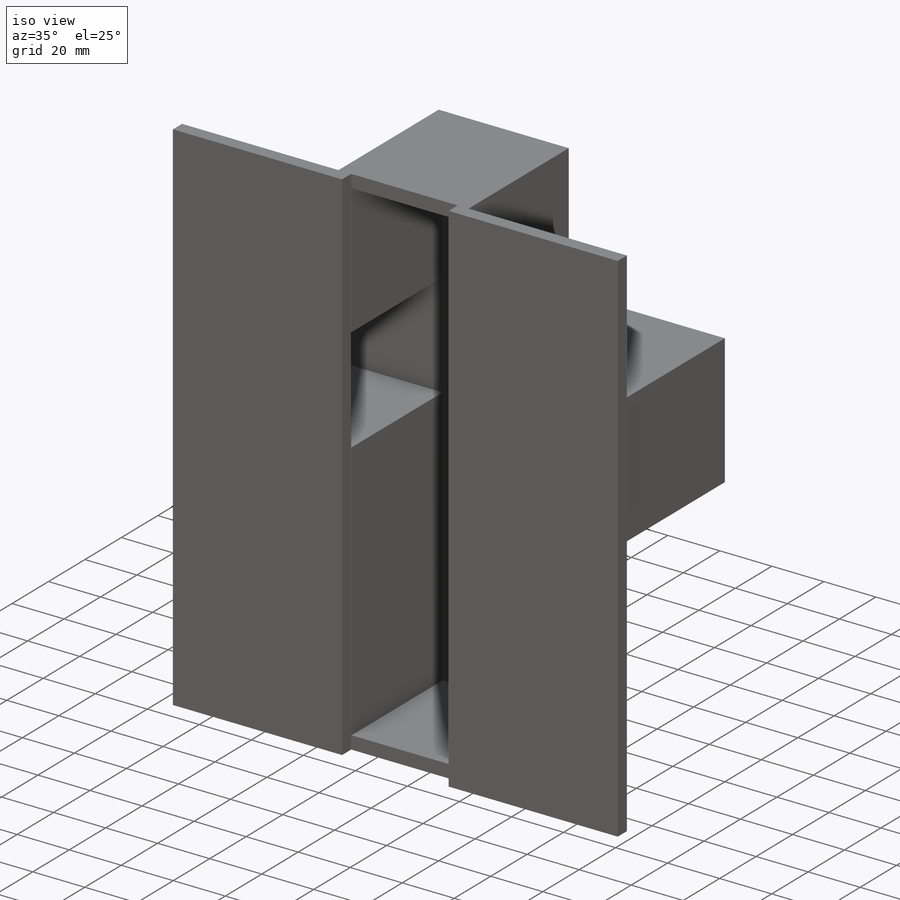
[diagram: iso view]
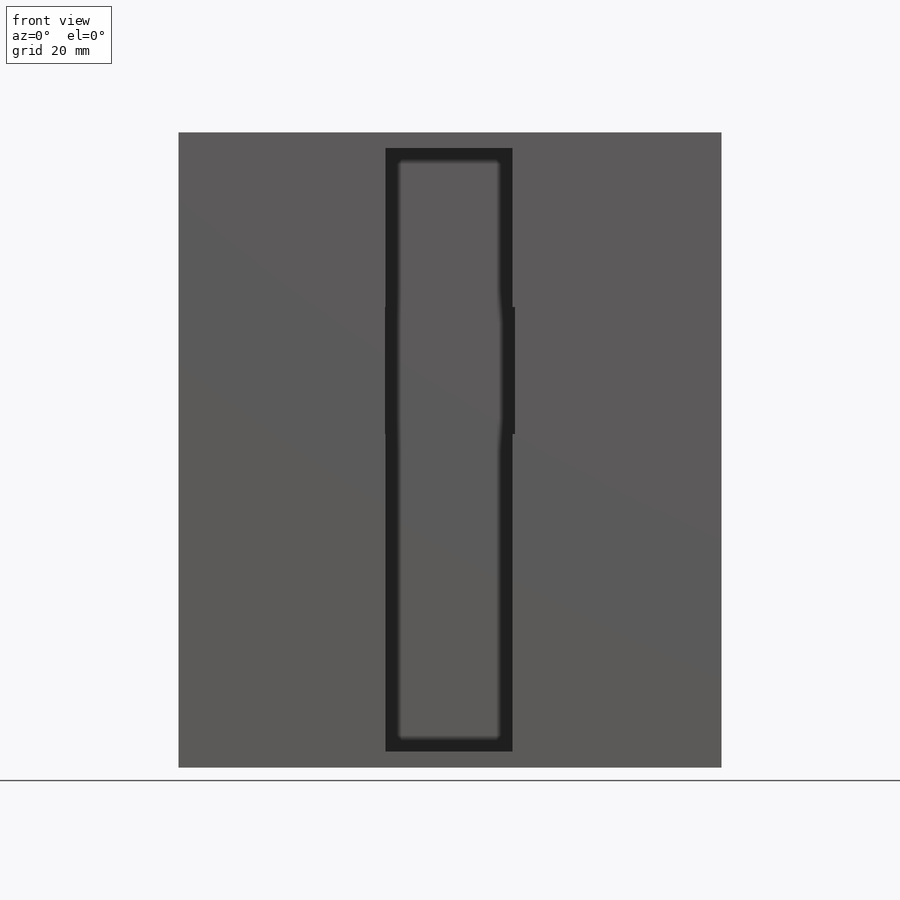
[diagram: front view]
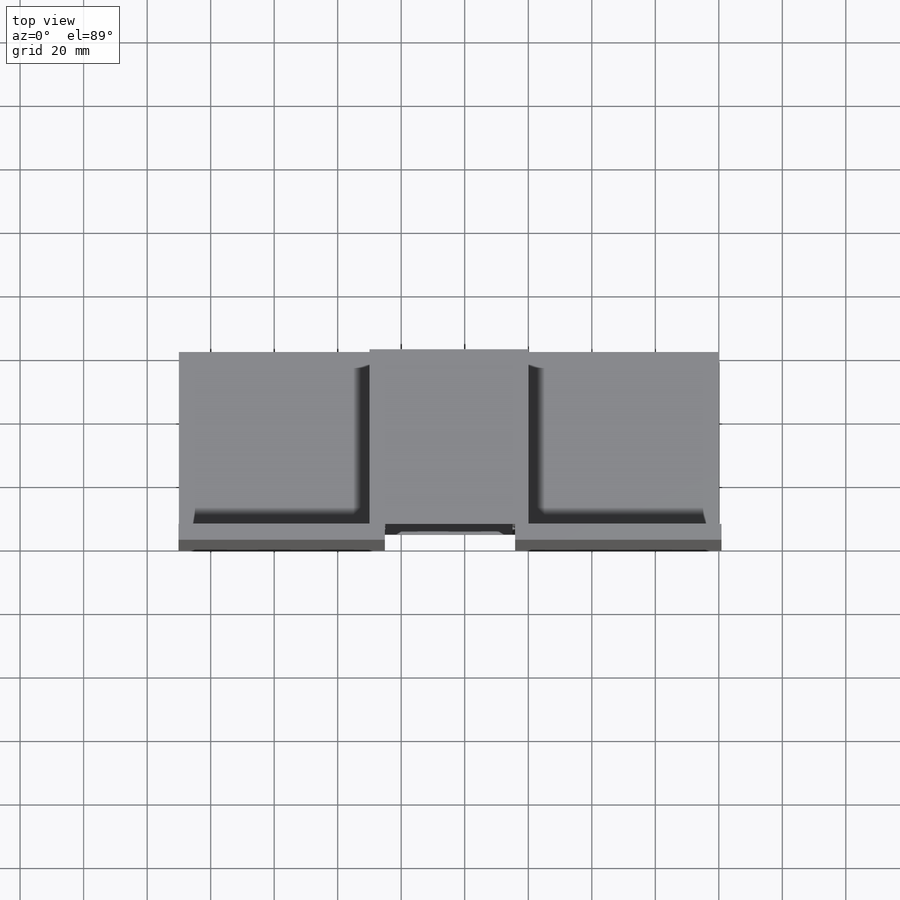
[diagram: top view]
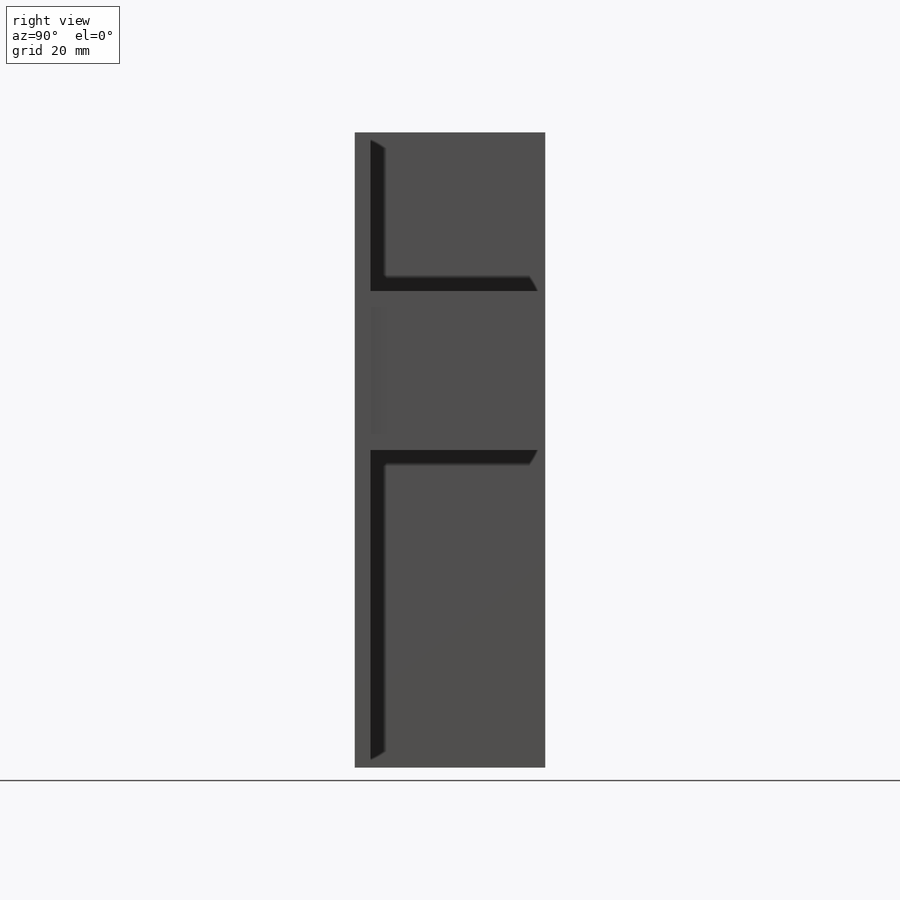
[diagram: right view]
SOLIDWORKS PART (.sldprt)
format: sldprt  version: not decoded by parser v0  size: 200,704 bytes
history: native  units: mm
features: sketch x4, extrude x4, plane x3, material x1 (+9 scaffold rows collapsed)
feature tree (21):
  scaffold x9  (default folders/planes/origin — collapsed)
  material  "Matériau <non spécifié>"
  plane  "Plan de face"
  plane  "Plan de dessus"
  plane  "Plan de droite"
  sketch  "Esquisse1"  dims[c1.D1=50.0mm c1.D2=15.0mm c1.D3=50.0mm c1.D4=50.0mm c1.D5=86.4989mm c2.D1=50.0mm c2.D2=60.0mm c2.D3=60.0mm c2.D4=50.0mm c2.D5=100.0mm c2.D6=50.0mm c3.D5=100.0mm]
  extrude  "Boss.-Extru.2"  Depth=5mm
  sketch  "Esquisse2"  dims[D1=0.0mm D2=0.0mm D3=5.0mm]
  extrude  "Boss.-Extru.3"  Depth=50mm
  sketch  "Esquisse3"  dims[c1.D1=55.0mm c1.D2=95.0mm c2.D1=200.0mm c2.D2=65.0mm c2.D3=5.0mm]
  extrude  "Boss.-Extru.7"  Depth=5mm
  sketch  "Esquisse8"  dims[D1=200.0mm D2=65.0mm]
  extrude  "Boss.-Extru.8"  Depth=5mm
decode coverage: 8 of 8 modeling features carry decoded parameters
note: suppression state not decoded; provenance and decode notes live in map.json
